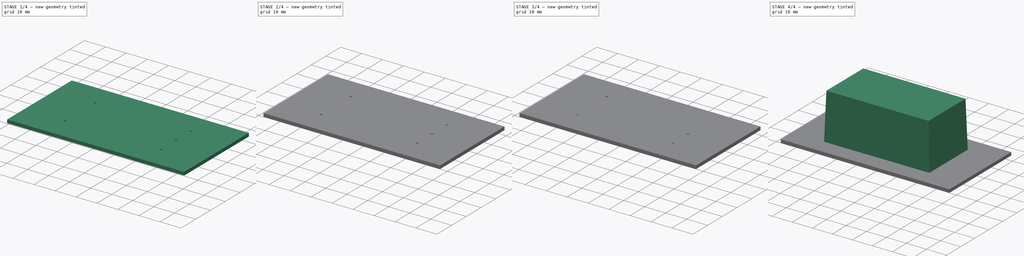
[diagram: build sequence overview — one tinted view per stage of 4, left to right]
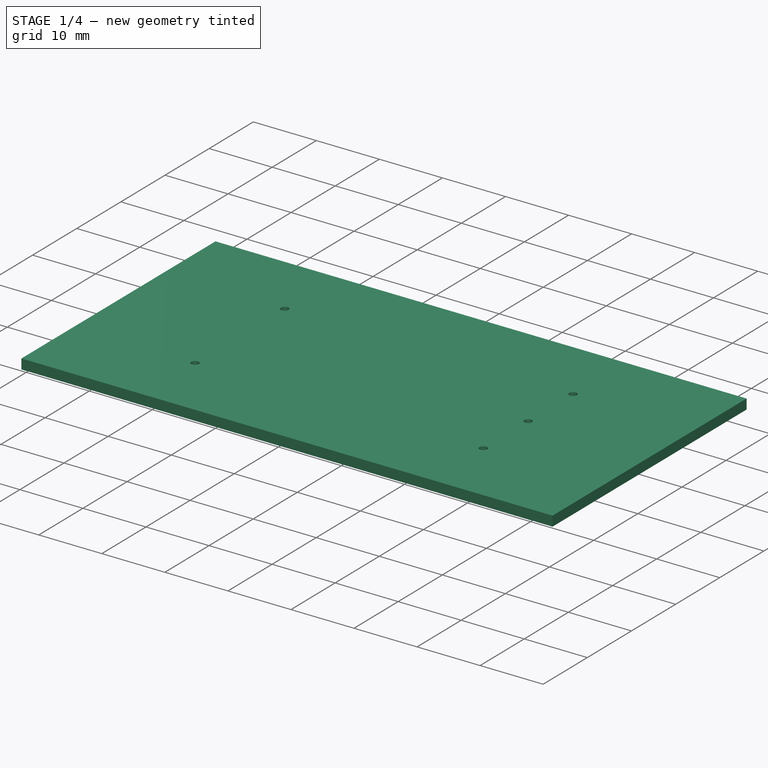
[diagram: stage 1 of 4 — iso view after this stage's code; geometry added in this stage tinted green]
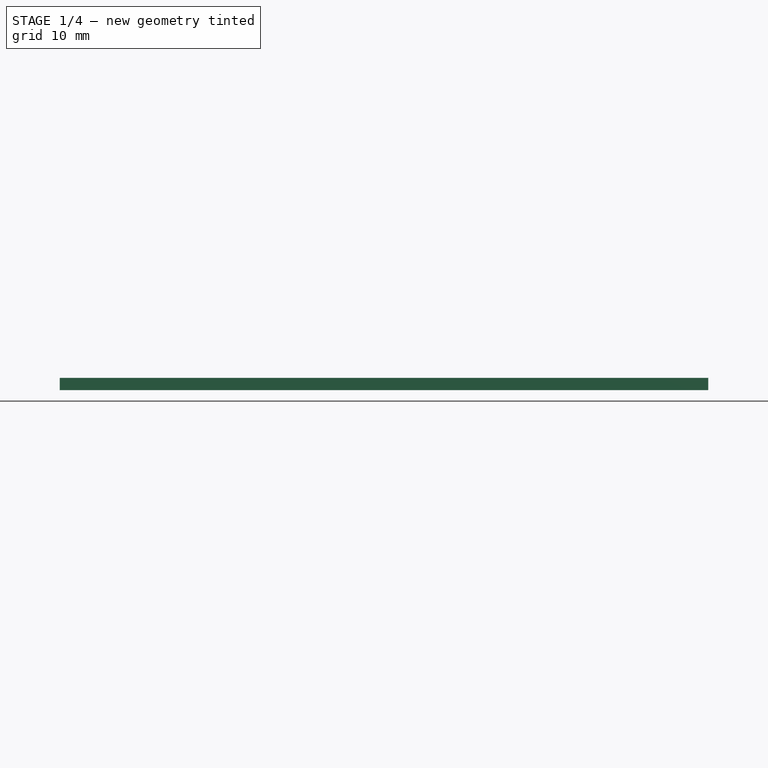
[diagram: stage 1 of 4 — front view after this stage's code; geometry added in this stage tinted green]
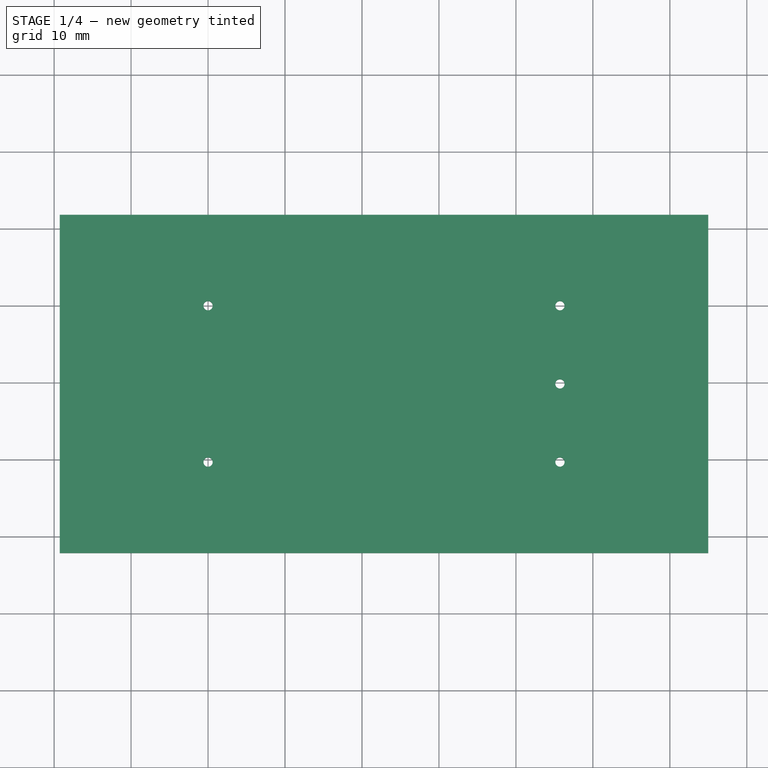
[diagram: stage 1 of 4 — top view after this stage's code; geometry added in this stage tinted green]
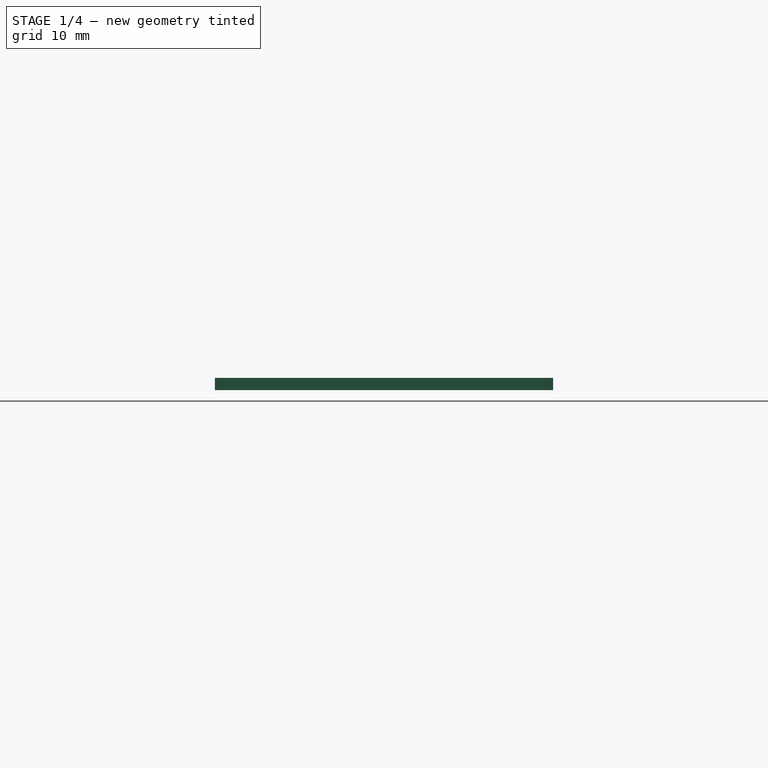
[diagram: stage 1 of 4 — right view after this stage's code; geometry added in this stage tinted green]
FCSTD DOCUMENT  (FreeCAD 0.17R13522 (Git))
Label: RAC20-DK
License: All rights reserved
LicenseURL: http://en.wikipedia.org/wiki/All_rights_reserved
objects: Sketcher::SketchObject×7, PartDesign::Body×6, PartDesign::Pad×5, Part::FeaturePython×5, PartDesign::Plane×1, PartDesign::AdditiveLoft×1, App::DocumentObjectGroup×1, Part::Feature×1
note: 32 computed .brp shape members not serialized (recipe doc carries the construction recipe); baked Part::Feature solids carry a one-line shape summary decoded from their .brp

FEATURE [Part::FeaturePython] THPs  label="PTHs"  # a2plus imported part (geometry in sourceFile) (typed FeaturePython)
  fixedPosition = true
FEATURE [Part::FeaturePython] newPCB  label="Pcb"  # a2plus imported part (geometry in sourceFile) (typed FeaturePython)
  fixedPosition = true
FEATURE [App::DocumentObjectGroup] RAC20_K_fp
  Group = -> [FFab_lines,TopPads,BotPads,THPs,newPCB]
FEATURE [Part::Feature] Shape  label="RAC20-DK"
  shape: bbox 52.5 x 27.4 x 30.08 mm, 31 faces (baked)
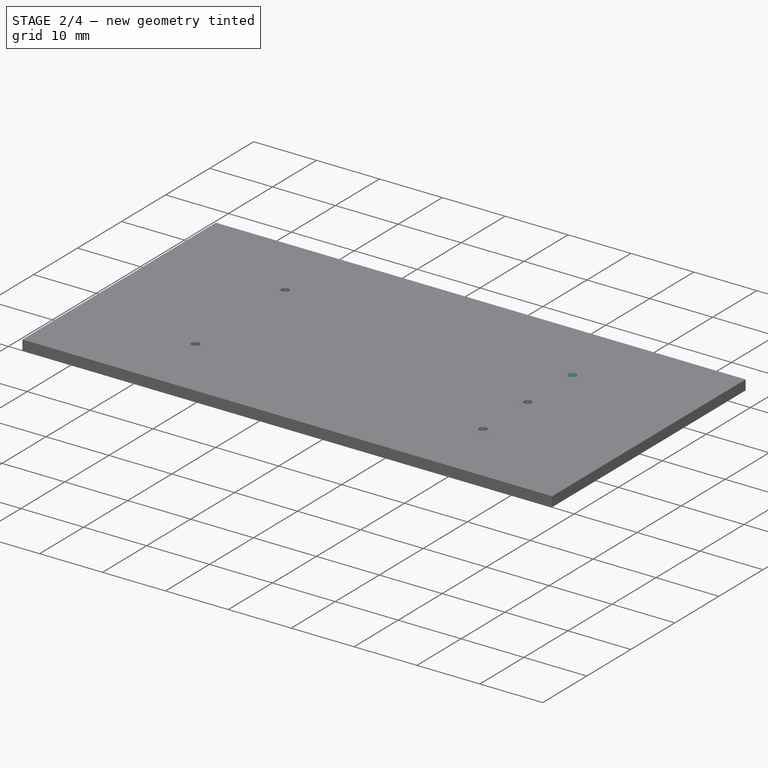
[diagram: stage 2 of 4 — iso view after this stage's code; geometry added in this stage tinted green]
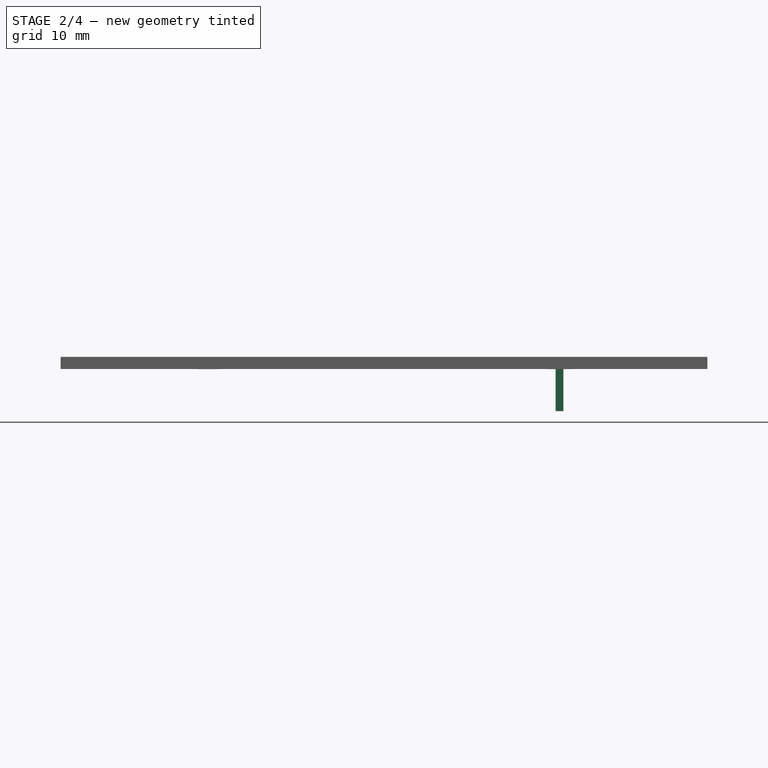
[diagram: stage 2 of 4 — front view after this stage's code; geometry added in this stage tinted green]
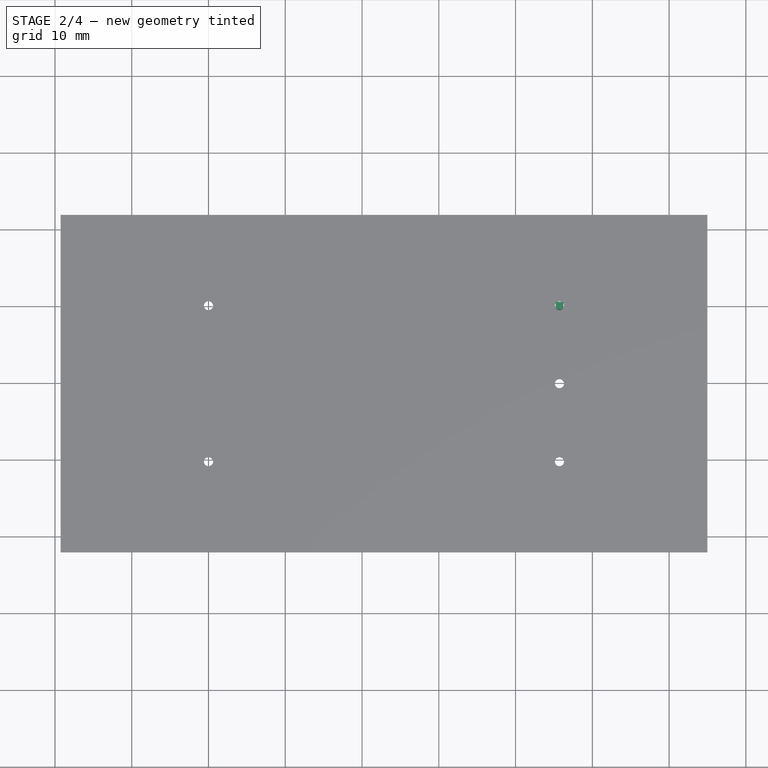
[diagram: stage 2 of 4 — top view after this stage's code; geometry added in this stage tinted green]
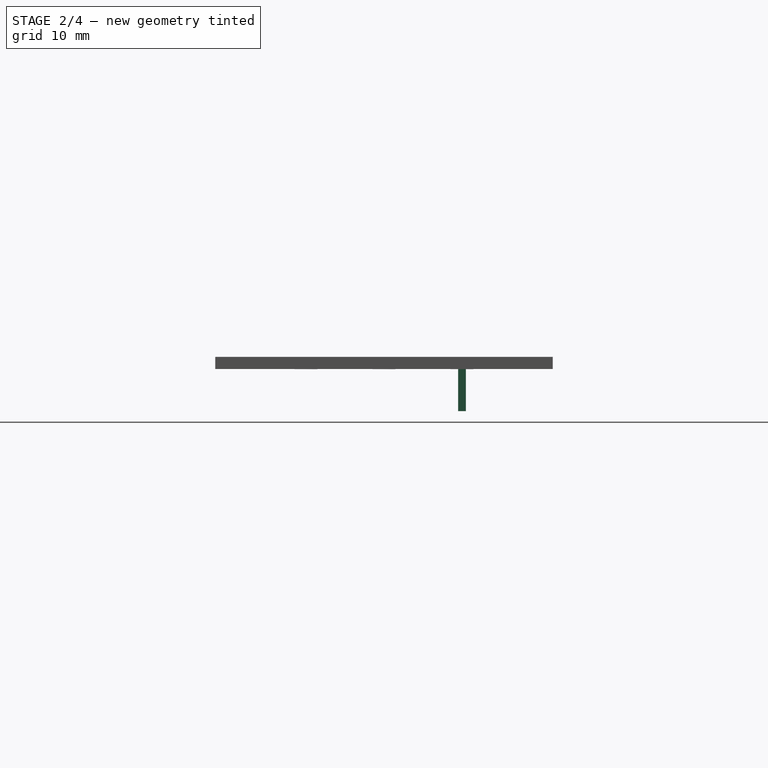
[diagram: stage 2 of 4 — right view after this stage's code; geometry added in this stage tinted green]
FEATURE [PartDesign::Body] Body004  label="Pin4"
  Group = -> [Sketch005,Pad003]
  Origin = -> Origin004
  Tip = -> Pad003
FEATURE [Sketcher::SketchObject] Sketch006
  MapMode = 5
  Support = -> [XY_Plane005]
  sketch-geometry (5):
    g0: LineSegment StartX=45.22 StartY=0.5 StartZ=0 EndX=46.22 EndY=0.5 EndZ=0
    g1: LineSegment StartX=46.22 StartY=0.5 StartZ=0 EndX=46.22 EndY=-0.5 EndZ=0
    g2: LineSegment StartX=46.22 StartY=-0.5 StartZ=0 EndX=45.22 EndY=-0.5 EndZ=0
    g3: LineSegment StartX=45.22 StartY=-0.5 StartZ=0 EndX=45.22 EndY=0.5 EndZ=0
    g4: LineSegment [constr] StartX=45.72 StartY=0.5 StartZ=0 EndX=45.72 EndY=-0.5 EndZ=0
  constraints (16):
    c: Coincident(g0,g1)
    c: Coincident(g1,g2)
    c: Coincident(g2,g3)
    c: Coincident(g3,g0)
    c: Horizontal(g0)
    c: Horizontal(g2)
    c: Vertical(g1)
    c: Vertical(g3)
    c: DistanceX(g0,g0) = 1
    c: Equal(g0,g1)
    c: Symmetric(g0,g1,g-1)
    c: PointOnObject(g4,g0)
    c: PointOnObject(g4,g2)
    c: Vertical(g4)
    c: Symmetric(g0,g0,g4)
    c: DistanceX(g-1,g4) = 45.72
FEATURE [PartDesign::Pad] Pad004
  Length = 7.08
  Length2 = 100
  Profile = -> Sketch006
  Refine = true
  Reversed = true
  Type = 0
FEATURE [PartDesign::Body] Body005  label="Pin5"
  Group = -> [Sketch006,Pad004]
  Origin = -> Origin005
  Tip = -> Pad004
FEATURE [Part::FeaturePython] FFab_lines  label="FFab"  # a2plus imported part (geometry in sourceFile) (typed FeaturePython)
  fixedPosition = true
FEATURE [Part::FeaturePython] TopPads  # a2plus imported part (geometry in sourceFile) (typed FeaturePython)
  fixedPosition = true
FEATURE [Part::FeaturePython] BotPads  # a2plus imported part (geometry in sourceFile) (typed FeaturePython)
  fixedPosition = true
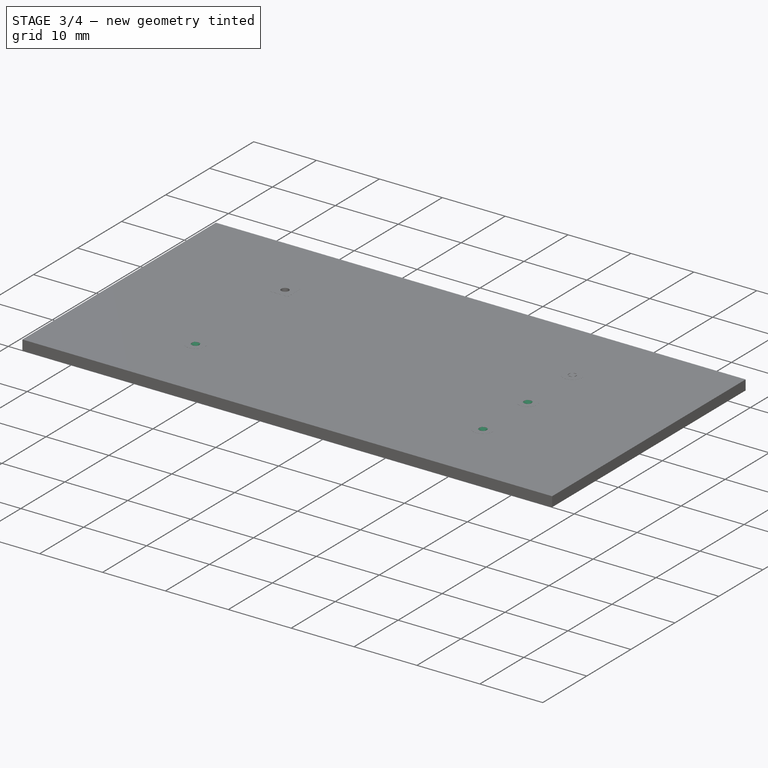
[diagram: stage 3 of 4 — iso view after this stage's code; geometry added in this stage tinted green]
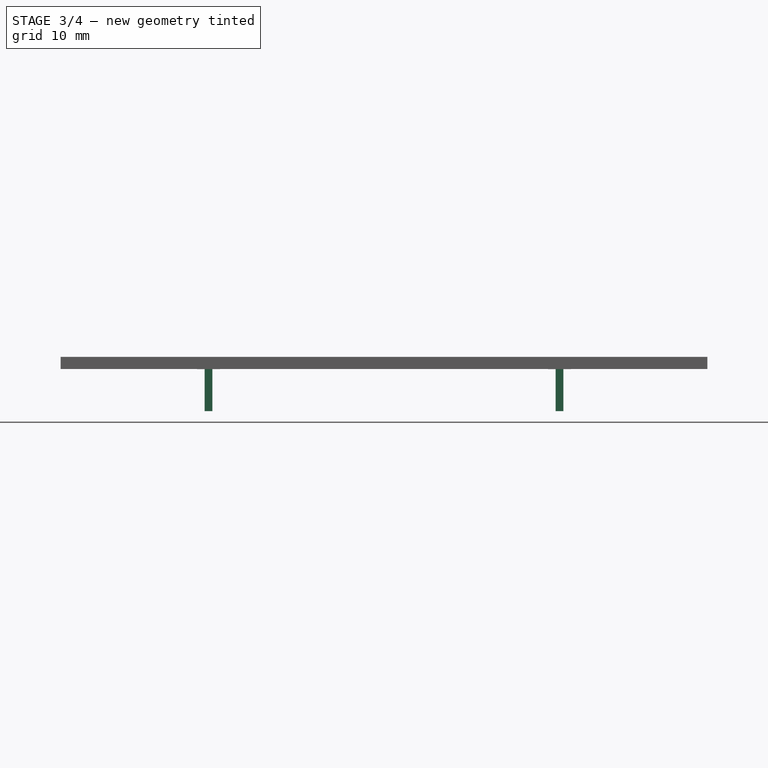
[diagram: stage 3 of 4 — front view after this stage's code; geometry added in this stage tinted green]
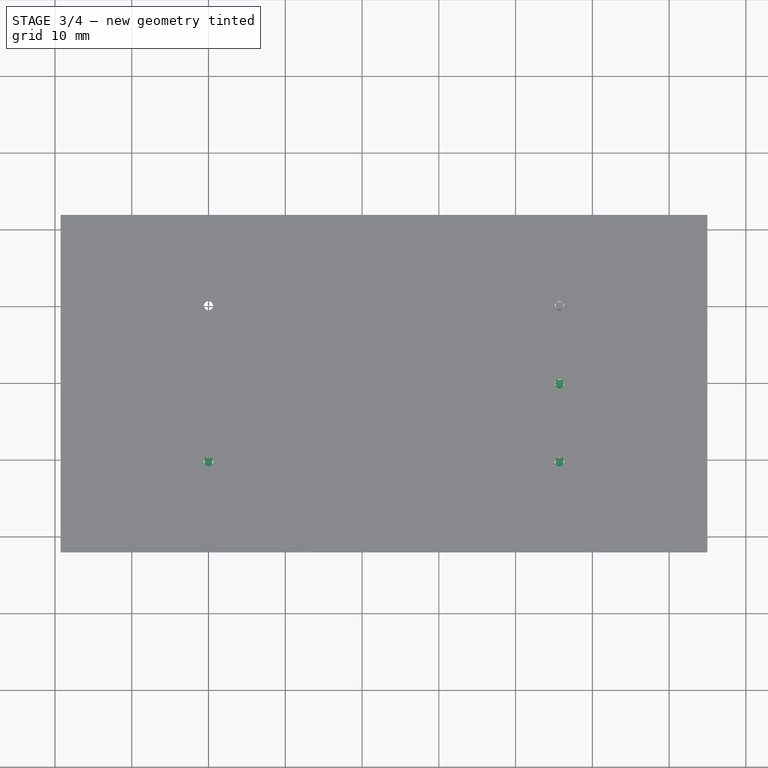
[diagram: stage 3 of 4 — top view after this stage's code; geometry added in this stage tinted green]
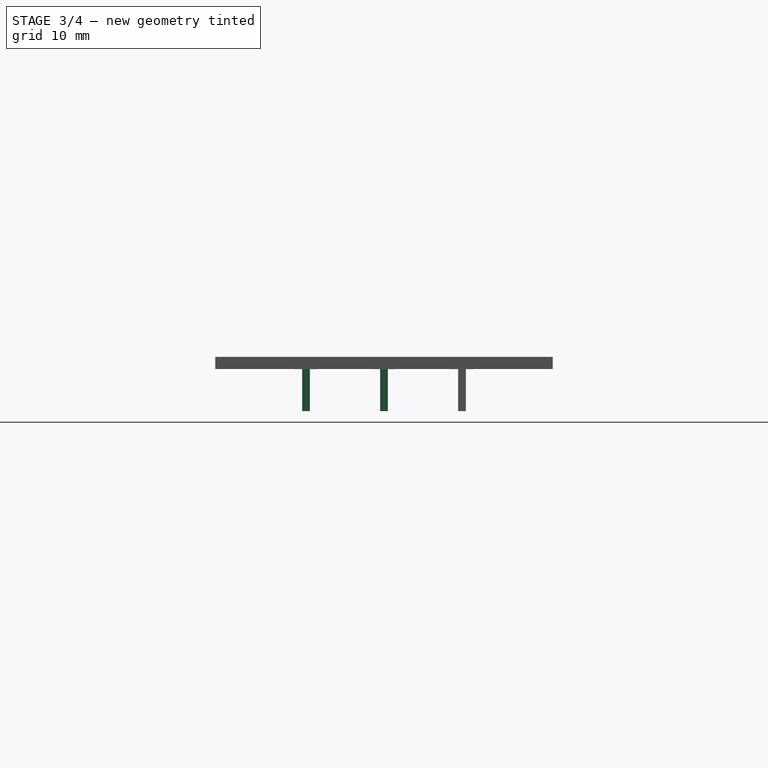
[diagram: stage 3 of 4 — right view after this stage's code; geometry added in this stage tinted green]
FEATURE [PartDesign::Body] Body001  label="Pin1"
  Group = -> [Sketch002,Pad]
  Origin = -> Origin001
  Tip = -> Pad
FEATURE [Sketcher::SketchObject] Sketch003
  MapMode = 5
  Support = -> [XY_Plane002]
  sketch-geometry (5):
    g0: LineSegment StartX=-0.5 StartY=-19.82 StartZ=0 EndX=0.5 EndY=-19.82 EndZ=0
    g1: LineSegment StartX=0.5 StartY=-19.82 StartZ=0 EndX=0.5 EndY=-20.82 EndZ=0
    g2: LineSegment StartX=0.5 StartY=-20.82 StartZ=0 EndX=-0.5 EndY=-20.82 EndZ=0
    g3: LineSegment StartX=-0.5 StartY=-20.82 StartZ=0 EndX=-0.5 EndY=-19.82 EndZ=0
    g4: LineSegment [constr] StartX=0.5 StartY=-20.32 StartZ=0 EndX=-0.5 EndY=-20.32 EndZ=0
  constraints (16):
    c: Coincident(g0,g1)
    c: Coincident(g1,g2)
    c: Coincident(g2,g3)
    c: Coincident(g3,g0)
    c: Horizontal(g0)
    c: Horizontal(g2)
    c: Vertical(g1)
    c: Vertical(g3)
    c: DistanceX(g0,g0) = 1
    c: Equal(g0,g1)
    c: Symmetric(g0,g0,g-2)
    c: PointOnObject(g4,g1)
    c: PointOnObject(g4,g3)
    c: Horizontal(g4)
    c: Symmetric(g0,g1,g4)
    c: DistanceY(g4,g-1) = 20.32
FEATURE [PartDesign::Pad] Pad001
  Length = 7.08
  Length2 = 100
  Profile = -> Sketch003
  Refine = true
  Reversed = true
  Type = 0
FEATURE [PartDesign::Body] Body002  label="Pin2"
  Group = -> [Sketch003,Pad001]
  Origin = -> Origin002
  Tip = -> Pad001
FEATURE [Sketcher::SketchObject] Sketch004
  MapMode = 5
  Support = -> [XY_Plane003]
  sketch-geometry (6):
    g0: LineSegment StartX=45.22 StartY=-19.82 StartZ=0 EndX=46.22 EndY=-19.82 EndZ=0
    g1: LineSegment StartX=46.22 StartY=-19.82 StartZ=0 EndX=46.22 EndY=-20.82 EndZ=0
    g2: LineSegment StartX=46.22 StartY=-20.82 StartZ=0 EndX=45.22 EndY=-20.82 EndZ=0
    g3: LineSegment StartX=45.22 StartY=-20.82 StartZ=0 EndX=45.22 EndY=-19.82 EndZ=0
    g4: LineSegment [constr] StartX=46.22 StartY=-20.32 StartZ=0 EndX=45.22 EndY=-20.32 EndZ=0
    g5: LineSegment [constr] StartX=45.72 StartY=-19.82 StartZ=0 EndX=45.72 EndY=-20.82 EndZ=0
  constraints (20):
    c: Coincident(g0,g1)
    c: Coincident(g1,g2)
    c: Coincident(g2,g3)
    c: Coincident(g3,g0)
    c: Horizontal(g0)
    c: Horizontal(g2)
    c: Vertical(g1)
    c: Vertical(g3)
    c: DistanceX(g0,g0) = 1
    c: Equal(g0,g1)
    c: PointOnObject(g4,g1)
    c: PointOnObject(g4,g3)
    c: PointOnObject(g5,g0)
    c: PointOnObject(g5,g2)
    c: Vertical(g5)
    c: Horizontal(g4)
    c: Symmetric(g0,g1,g4)
    c: Symmetric(g0,g0,g5)
    c: DistanceY(g4,g-1) = 20.32
    c: DistanceX(g-1,g5) = 45.72
FEATURE [PartDesign::Pad] Pad002
  Length = 7.08
  Length2 = 100
  Profile = -> Sketch004
  Refine = true
  Reversed = true
  Type = 0
FEATURE [PartDesign::Body] Body003  label="Pin3"
  Group = -> [Sketch004,Pad002]
  Origin = -> Origin003
  Tip = -> Pad002
FEATURE [Sketcher::SketchObject] Sketch005
  MapMode = 5
  Support = -> [XY_Plane004]
  sketch-geometry (6):
    g0: LineSegment StartX=45.22 StartY=-9.66 StartZ=0 EndX=46.22 EndY=-9.66 EndZ=0
    g1: LineSegment StartX=46.22 StartY=-9.66 StartZ=0 EndX=46.22 EndY=-10.66 EndZ=0
    g2: LineSegment StartX=46.22 StartY=-10.66 StartZ=0 EndX=45.22 EndY=-10.66 EndZ=0
    g3: LineSegment StartX=45.22 StartY=-10.66 StartZ=0 EndX=45.22 EndY=-9.66 EndZ=0
    g4: LineSegment [constr] StartX=46.22 StartY=-10.16 StartZ=0 EndX=45.22 EndY=-10.16 EndZ=0
    g5: LineSegment [constr] StartX=45.72 StartY=-9.66 StartZ=0 EndX=45.72 EndY=-10.66 EndZ=0
  constraints (20):
    c: Coincident(g0,g1)
    c: Coincident(g1,g2)
    c: Coincident(g2,g3)
    c: Coincident(g3,g0)
    c: Horizontal(g0)
    c: Horizontal(g2)
    c: Vertical(g1)
    c: Vertical(g3)
    c: DistanceX(g0,g0) = 1
    c: Equal(g0,g1)
    c: PointOnObject(g4,g1)
    c: PointOnObject(g4,g3)
    c: Horizontal(g4)
    c: PointOnObject(g5,g0)
    c: PointOnObject(g5,g2)
    c: Vertical(g5)
    c: Symmetric(g0,g0,g5)
    c: Symmetric(g0,g1,g4)
    c: DistanceY(g4,g-1) = 10.16
    c: DistanceX(g-1,g5) = 45.72
FEATURE [PartDesign::Pad] Pad003
  Length = 7.08
  Length2 = 100
  Profile = -> Sketch005
  Refine = true
  Reversed = true
  Type = 0
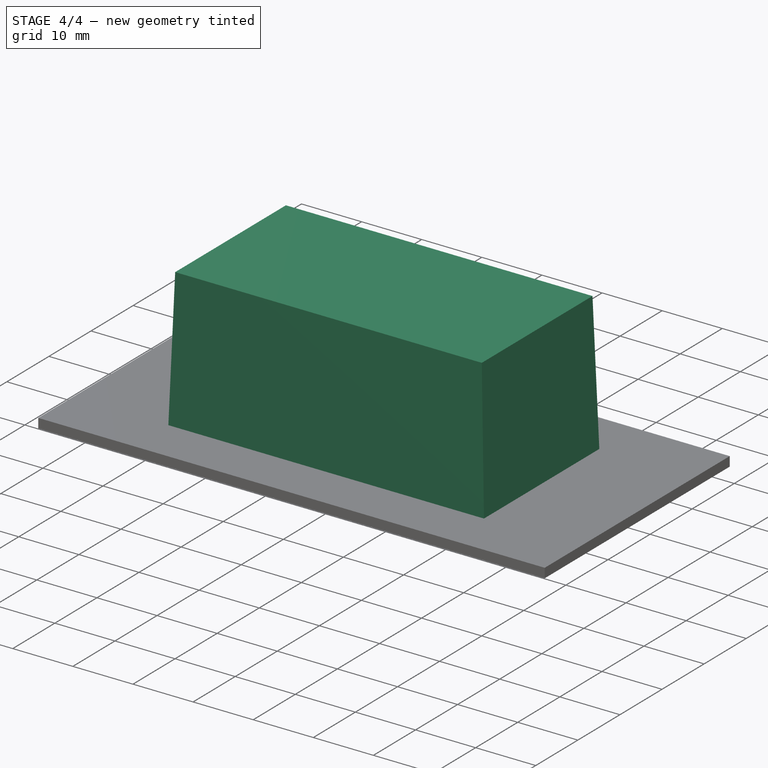
[diagram: stage 4 of 4 — iso view after this stage's code; geometry added in this stage tinted green]
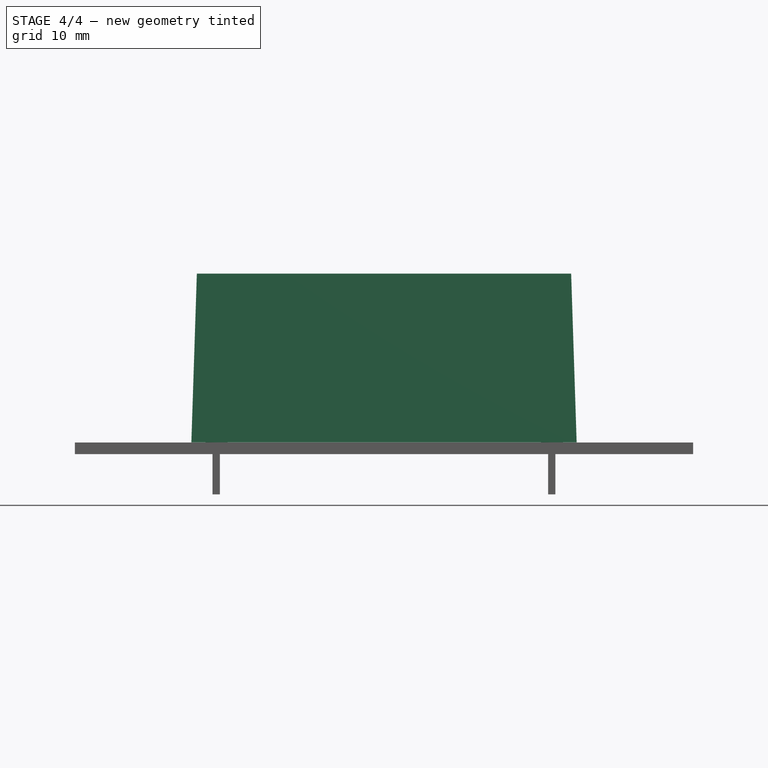
[diagram: stage 4 of 4 — front view after this stage's code; geometry added in this stage tinted green]
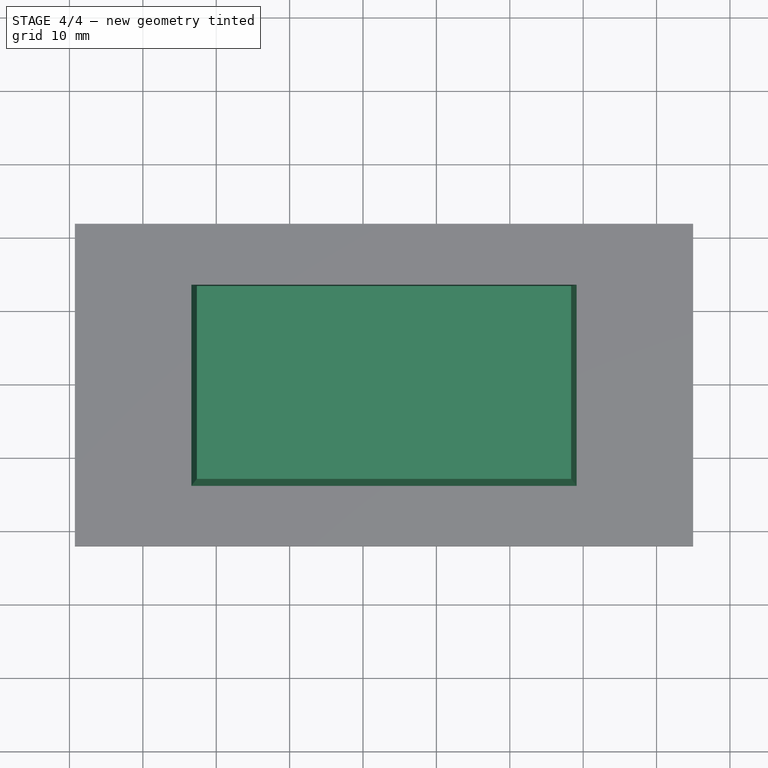
[diagram: stage 4 of 4 — top view after this stage's code; geometry added in this stage tinted green]
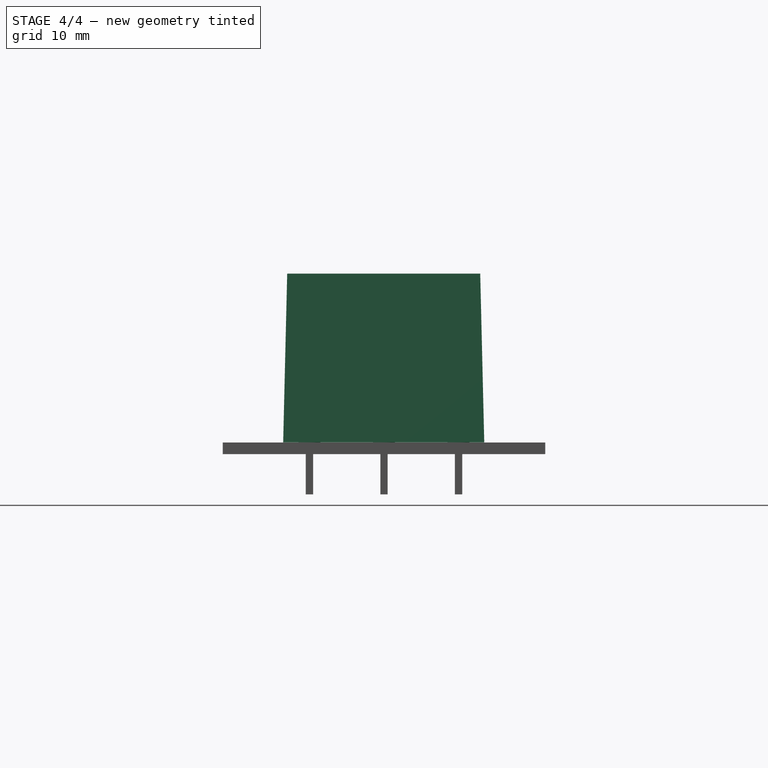
[diagram: stage 4 of 4 — right view after this stage's code; geometry added in this stage tinted green]
FEATURE [Sketcher::SketchObject] Sketch
  MapMode = 5
  Support = -> [XY_Plane]
  sketch-geometry (4):
    g0: LineSegment StartX=-3.39 StartY=3.5 StartZ=0 EndX=49.11 EndY=3.5 EndZ=0
    g1: LineSegment StartX=49.11 StartY=3.5 StartZ=0 EndX=49.11 EndY=-23.9 EndZ=0
    g2: LineSegment StartX=49.11 StartY=-23.9 StartZ=0 EndX=-3.39 EndY=-23.9 EndZ=0
    g3: LineSegment StartX=-3.39 StartY=-23.9 StartZ=0 EndX=-3.39 EndY=3.5 EndZ=0
  constraints (12):
    c: Coincident(g0,g1)
    c: Coincident(g1,g2)
    c: Coincident(g2,g3)
    c: Coincident(g3,g0)
    c: Horizontal(g0)
    c: Horizontal(g2)
    c: Vertical(g1)
    c: Vertical(g3)
    c: DistanceY(g1,g1) = 27.4
    c: DistanceX(g0,g0) = 52.5
    c: DistanceY(g-1,g0) = 3.5
    c: DistanceX(g0,g-1) = 3.39
FEATURE [PartDesign::Plane] DatumPlane
  AttachmentOffset = pos=(0,0,23) rot=(0,0,1;0rad)
  MapMode = 2
  Placement = pos=(0,0,23) rot=(0,0,1;0rad)
  Support = -> [Sketch]
FEATURE [Sketcher::SketchObject] Sketch001
  ExternalGeometry = -> [Sketch]
  MapMode = 5
  Placement = pos=(0,0,23) rot=(0,0,1;0rad)
  Support = -> [DatumPlane]
  sketch-geometry (6):
    g0: LineSegment StartX=-2.64 StartY=2.95 StartZ=0 EndX=48.36 EndY=2.95 EndZ=0
    g1: LineSegment StartX=48.36 StartY=2.95 StartZ=0 EndX=48.36 EndY=-23.35 EndZ=0
    g2: LineSegment StartX=48.36 StartY=-23.35 StartZ=0 EndX=-2.64 EndY=-23.35 EndZ=0
    g3: LineSegment StartX=-2.64 StartY=-23.35 StartZ=0 EndX=-2.64 EndY=2.95 EndZ=0
    g4: LineSegment [constr] StartX=22.86 StartY=2.95 StartZ=0 EndX=22.86 EndY=-23.35 EndZ=0
    g5: LineSegment [constr] StartX=49.11 StartY=-10.2 StartZ=0 EndX=-3.39 EndY=-10.2 EndZ=0
  constraints (19):
    c: Coincident(g0,g1)
    c: Coincident(g1,g2)
    c: Coincident(g2,g3)
    c: Coincident(g3,g0)
    c: Horizontal(g0)
    c: Horizontal(g2)
    c: Vertical(g1)
    c: Vertical(g3)
    c: DistanceY(g1,g1) = 26.3
    c: DistanceX(g0,g0) = 51
    c: PointOnObject(g4,g0)
    c: PointOnObject(g4,g2)
    c: Vertical(g4)
    c: PointOnObject(g5,g-3)
    c: PointOnObject(g5,g-4)
    c: Symmetric(g-3,g-3,g5)
    c: Symmetric(g-3,g-4,g4)
    c: Symmetric(g0,g0,g4)
    c: Symmetric(g0,g1,g5)
FEATURE [PartDesign::AdditiveLoft] AdditiveLoft
  Closed = false
  Placement = pos=(0,0,23) rot=(0,0,1;0rad)
  Profile = -> Sketch001
  Refine = true
  Ruled = false
  Sections = -> [Sketch]
FEATURE [PartDesign::Body] Body
  Group = -> [Sketch,DatumPlane,Sketch001,AdditiveLoft]
  Origin = -> Origin
  Tip = -> AdditiveLoft
FEATURE [Sketcher::SketchObject] Sketch002
  MapMode = 5
  Support = -> [XY_Plane001]
  sketch-geometry (4):
    g0: LineSegment StartX=-0.5 StartY=0.5 StartZ=0 EndX=0.5 EndY=0.5 EndZ=0
    g1: LineSegment StartX=0.5 StartY=0.5 StartZ=0 EndX=0.5 EndY=-0.5 EndZ=0
    g2: LineSegment StartX=0.5 StartY=-0.5 StartZ=0 EndX=-0.5 EndY=-0.5 EndZ=0
    g3: LineSegment StartX=-0.5 StartY=-0.5 StartZ=0 EndX=-0.5 EndY=0.5 EndZ=0
  constraints (12):
    c: Coincident(g0,g1)
    c: Coincident(g1,g2)
    c: Coincident(g2,g3)
    c: Coincident(g3,g0)
    c: Horizontal(g0)
    c: Horizontal(g2)
    c: Vertical(g1)
    c: Vertical(g3)
    c: DistanceX(g0,g0) = 1
    c: Equal(g0,g1)
    c: Symmetric(g0,g0,g-2)
    c: Symmetric(g0,g1,g-1)
FEATURE [PartDesign::Pad] Pad
  Length = 7.08
  Length2 = 100
  Profile = -> Sketch002
  Refine = true
  Reversed = true
  Type = 0
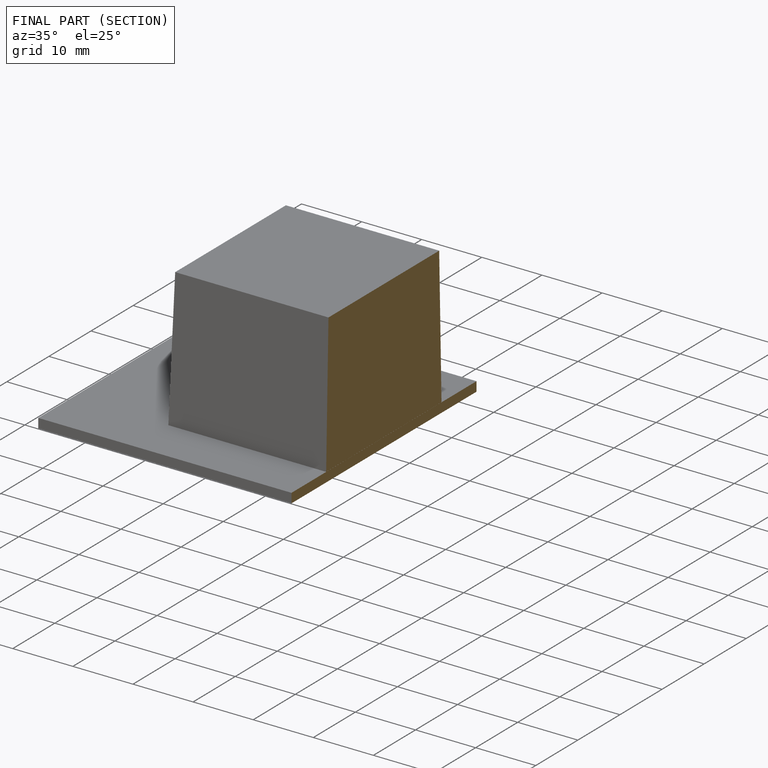
[diagram: finished part — half-section view (interior)]
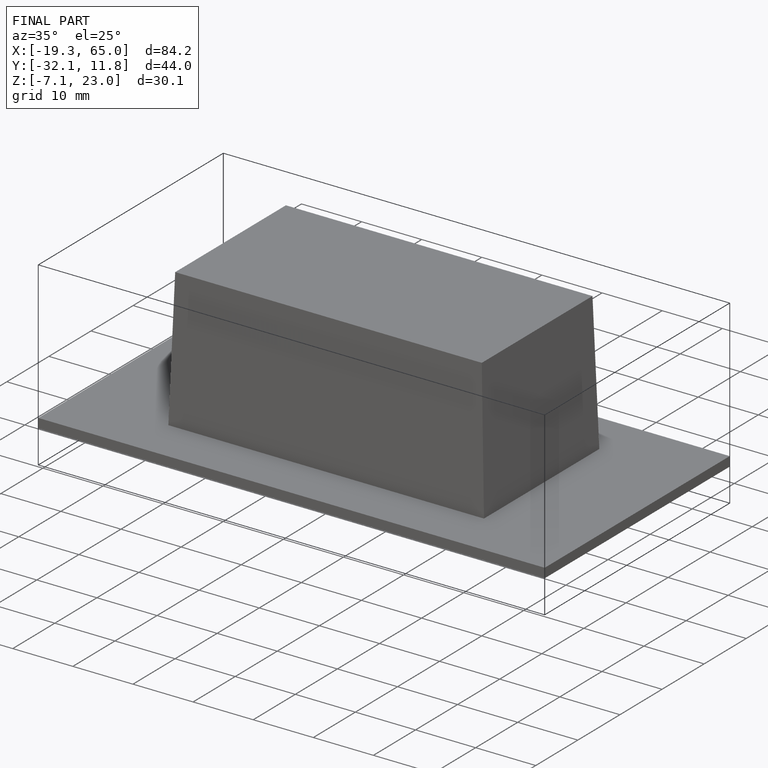
[diagram: finished part — iso view with bounding-box wireframe]
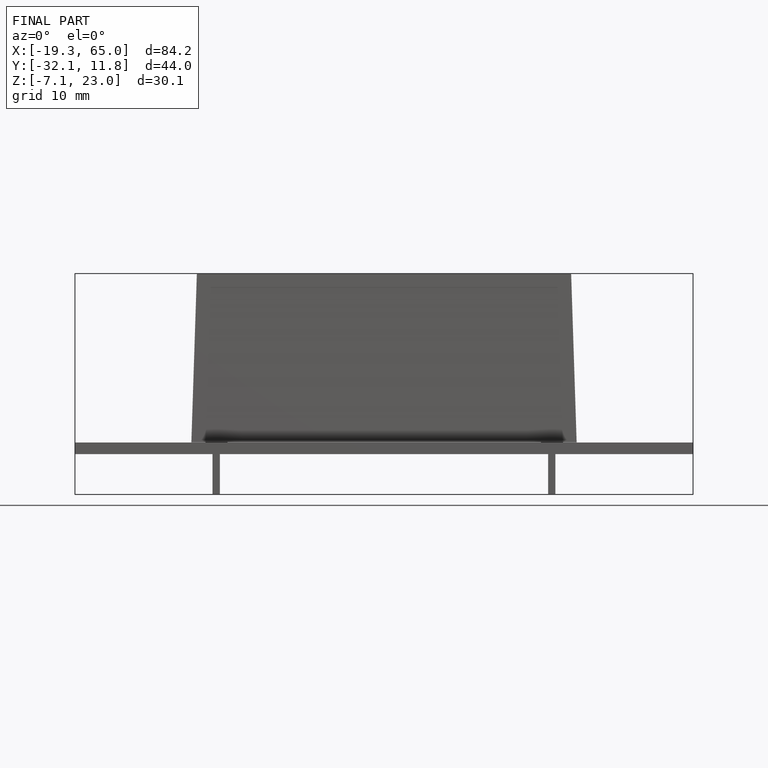
[diagram: finished part — front view with bounding-box wireframe]
